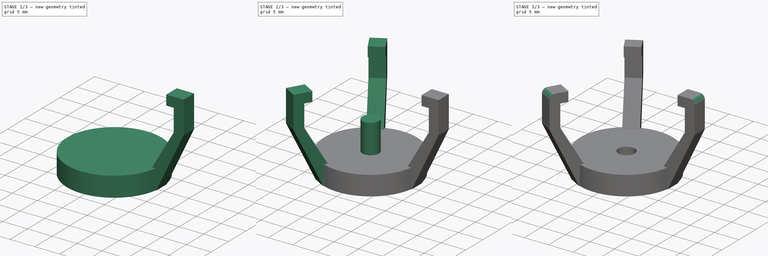
[diagram: build sequence overview — one tinted view per stage of 3, left to right]
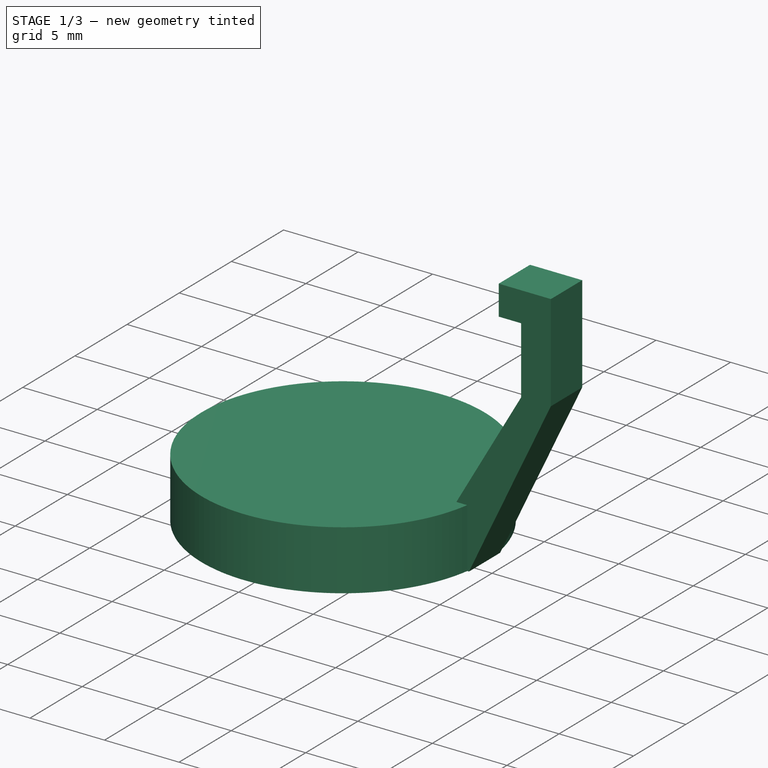
[diagram: stage 1 of 3 — iso view after this stage's code; geometry added in this stage tinted green]
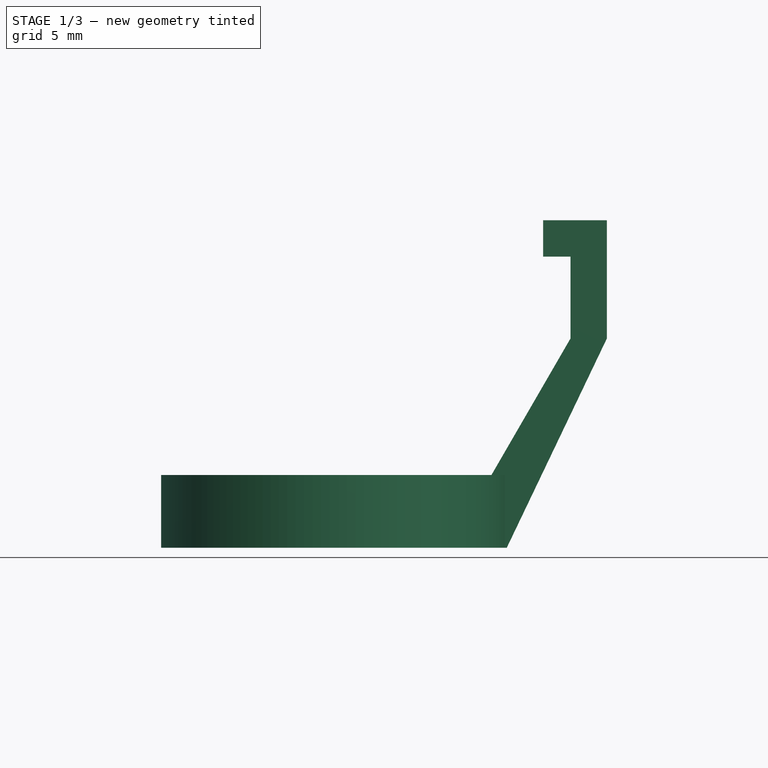
[diagram: stage 1 of 3 — front view after this stage's code; geometry added in this stage tinted green]
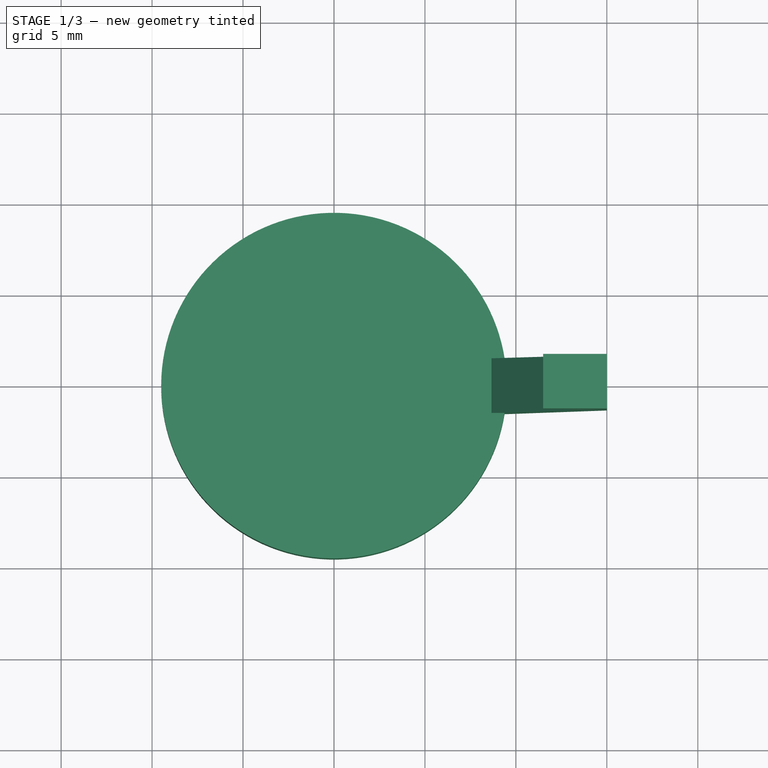
[diagram: stage 1 of 3 — top view after this stage's code; geometry added in this stage tinted green]
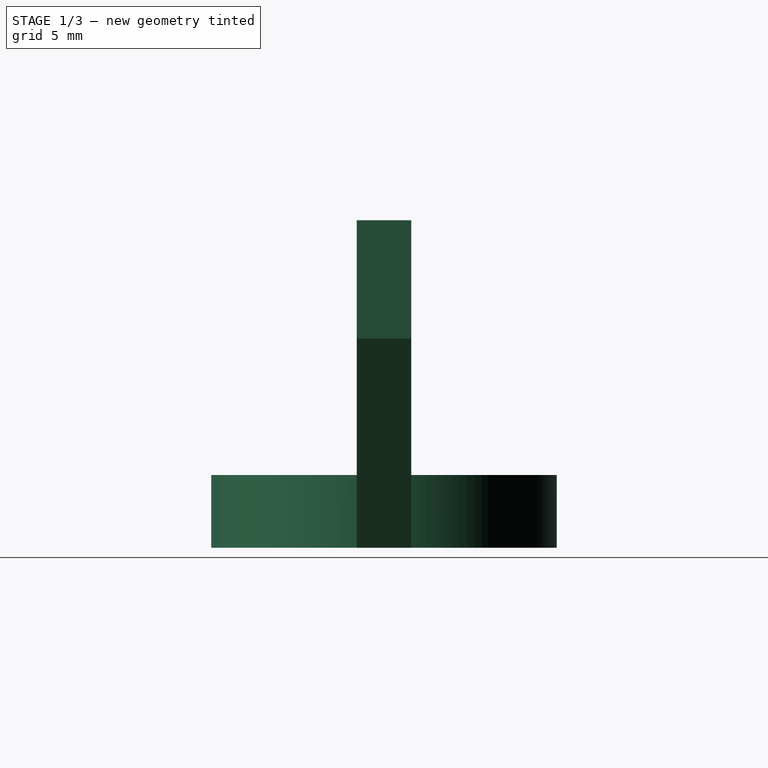
[diagram: stage 1 of 3 — right view after this stage's code; geometry added in this stage tinted green]
FCSTD DOCUMENT  (FreeCAD 1.0R39285 (Git))
Label: BeeperHolder
License: All rights reserved
LicenseURL: https://en.wikipedia.org/wiki/All_rights_reserved
objects: Part::Cylinder×2, Sketcher::SketchObject×1, PartDesign::Pad×1, PartDesign::PolarPattern×1, PartDesign::Body×1, Part::Fuse×1, Part::Cut×1, Part::Fillet×1
note: 13 computed .brp shape members not serialized (recipe doc carries the construction recipe); baked Part::Feature solids carry a one-line shape summary decoded from their .brp

FEATURE [Sketcher::SketchObject] Sketch  label="ArmSketch"
  ArcFitTolerance = 1e-06
  AttachmentSupport = -> [XZ_Plane]
  FullyConstrained = true
  MakeInternals = false
  MapMode = 5
  Placement = pos=(0,0,0) rot=(1,0,0;1.5708rad)
  sketch-geometry (18):
    g0: LineSegment [constr] StartX=0 StartY=15.5 StartZ=0 EndX=0 EndY=11.5 EndZ=0
    g1: LineSegment [constr] StartX=0 StartY=11.5 StartZ=0 EndX=13 EndY=11.5 EndZ=0
    g2: LineSegment [constr] StartX=13 StartY=11.5 StartZ=0 EndX=13 EndY=15.5 EndZ=0
    g3: LineSegment [constr] StartX=13 StartY=15.5 StartZ=0 EndX=0 EndY=15.5 EndZ=0
    g4: LineSegment [constr] StartX=7.5 StartY=11.5 StartZ=0 EndX=0 EndY=11.5 EndZ=0
    g5: LineSegment [constr] StartX=0 StartY=11.5 StartZ=0 EndX=0 EndY=8.5 EndZ=0
    g6: LineSegment [constr] StartX=0 StartY=8.5 StartZ=0 EndX=7.5 EndY=8.5 EndZ=0
    g7: LineSegment [constr] StartX=7.5 StartY=8.5 StartZ=0 EndX=7.5 EndY=11.5 EndZ=0
    g8: LineSegment StartX=0 StartY=0 StartZ=0 EndX=0 EndY=2 EndZ=0
    g9: LineSegment StartX=0 StartY=2 StartZ=0 EndX=7.5 EndY=2 EndZ=0
    g10: LineSegment StartX=7.5 StartY=2 StartZ=0 EndX=13 EndY=11.5 EndZ=0
    g11: LineSegment StartX=0 StartY=0 StartZ=0 EndX=9.5 EndY=0 EndZ=0
    g12: LineSegment StartX=9.5 StartY=0 StartZ=0 EndX=15 EndY=11.5 EndZ=0
    g13: LineSegment StartX=13 StartY=11.5 StartZ=0 EndX=13 EndY=16 EndZ=0
    g14: LineSegment StartX=13 StartY=16 StartZ=0 EndX=11.5 EndY=16 EndZ=0
    g15: LineSegment StartX=11.5 StartY=16 StartZ=0 EndX=11.5 EndY=18 EndZ=0
    g16: LineSegment StartX=11.5 StartY=18 StartZ=0 EndX=15 EndY=18 EndZ=0
    g17: LineSegment StartX=15 StartY=18 StartZ=0 EndX=15 EndY=11.5 EndZ=0
  constraints (51):
    c: Coincident(g0,g1)
    c: Coincident(g1,g2)
    c: Coincident(g2,g3)
    c: Coincident(g3,g0)
    c: Vertical(g0)
    c: Vertical(g2)
    c: Horizontal(g1)
    c: Horizontal(g3)
    c: PointOnObject(g0,g-2)
    c: DistanceX(g3,g3) = 13
    c: DistanceY(g0,g0) = 4
    c: Coincident(g4,g5)
    c: Coincident(g5,g6)
    c: Coincident(g6,g7)
    c: Coincident(g7,g4)
    c: Horizontal(g4)
    c: Horizontal(g6)
    c: Vertical(g5)
    c: Vertical(g7)
    c: DistanceX(g6,g6) = 7.5
    c: DistanceY(g5,g5) = 3
    c: Coincident(g-1,g8)
    c: PointOnObject(g8,g-2)
    c: Coincident(g8,g9)
    c: Horizontal(g9)
    c: Coincident(g9,g10)
    c: Coincident(g0,g4)
    c: Coincident(g8,g11)
    c: PointOnObject(g11,g-1)
    c: Coincident(g11,g12)
    c: DistanceY(g8,g8) = 2
    c: DistanceY(g8,g5) = 6.5
    c: Coincident(g10,g13)
    c: Vertical(g13)
    c: Coincident(g13,g14)
    c: Horizontal(g14)
    c: Coincident(g14,g15)
    c: Vertical(g15)
    c: Coincident(g15,g16)
    c: Horizontal(g16)
    c: Coincident(g16,g17)
    c: Coincident(g17,g12)
    c: Vertical(g6,g9)
    c: DistanceX(g9,g11) = 2
    c: Coincident(g1,g10)
    c: Horizontal(g1,g12)
    c: DistanceX(g1,g12) = 2
    c: Vertical(g17)
    c: DistanceY(g15,g15) = 2
    c: DistanceX(g14,g14) = 1.5
    c: DistanceY(g2,g13) = 0.5
FEATURE [PartDesign::Pad] Pad  label="ArmPad"
  Direction = (0,-1,2e-16)
  Length = 3
  Length2 = 10
  Midplane = true
  Placement = pos=(0,0,0) rot=(1,0,0;1.5708rad)
  Profile = -> Sketch
  ReferenceAxis = -> Sketch [N_Axis]
  Refine = true
  Suppressed = false
  Type = 0
FEATURE [PartDesign::Body] Body
  AllowCompound = false
  Group = -> [Sketch,Pad,PolarPattern]
  Origin = -> Origin
  Tip = -> PolarPattern
FEATURE [Part::Cylinder] Cylinder  label="BaseCylinder"
  Angle = 360
  AttacherType = Attacher::AttachEngine3D
  FirstAngle = 0
  Height = 4
  Radius = 9.5
  SecondAngle = 0
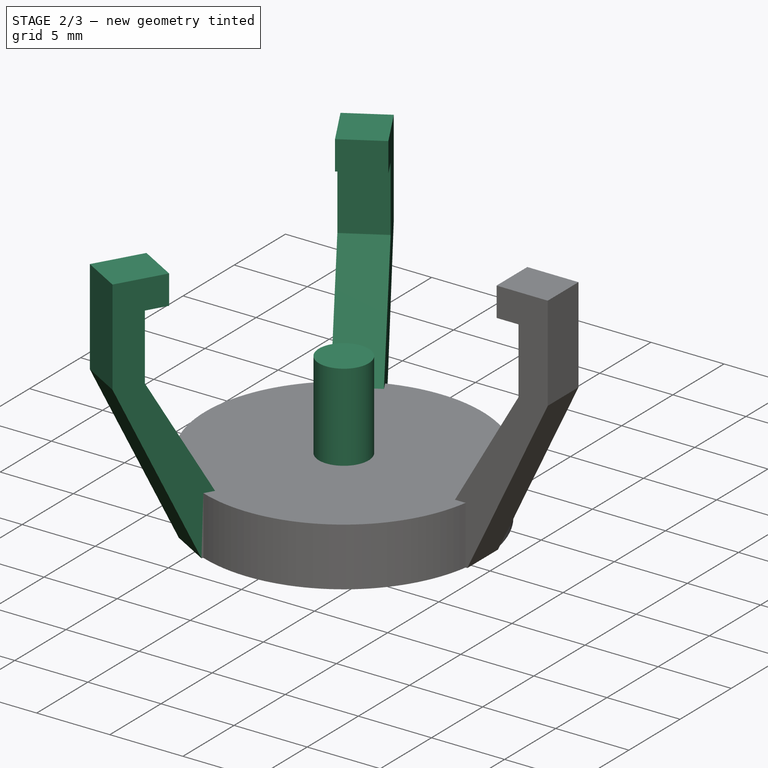
[diagram: stage 2 of 3 — iso view after this stage's code; geometry added in this stage tinted green]
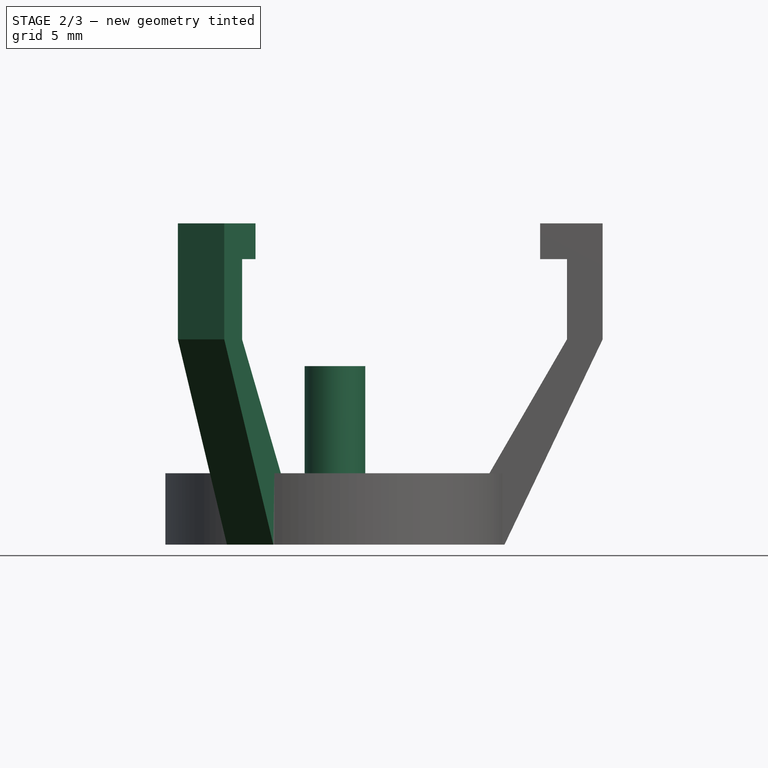
[diagram: stage 2 of 3 — front view after this stage's code; geometry added in this stage tinted green]
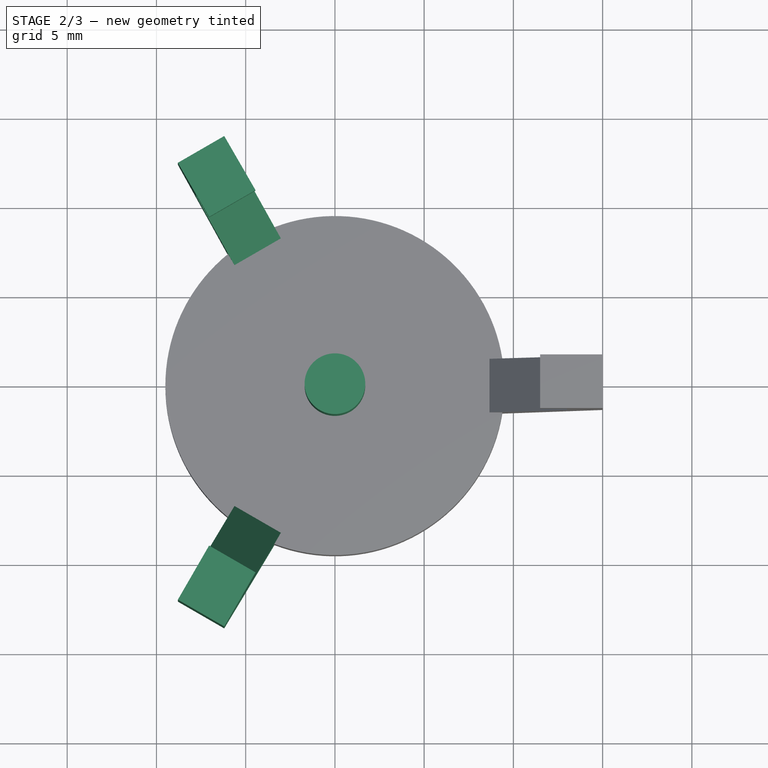
[diagram: stage 2 of 3 — top view after this stage's code; geometry added in this stage tinted green]
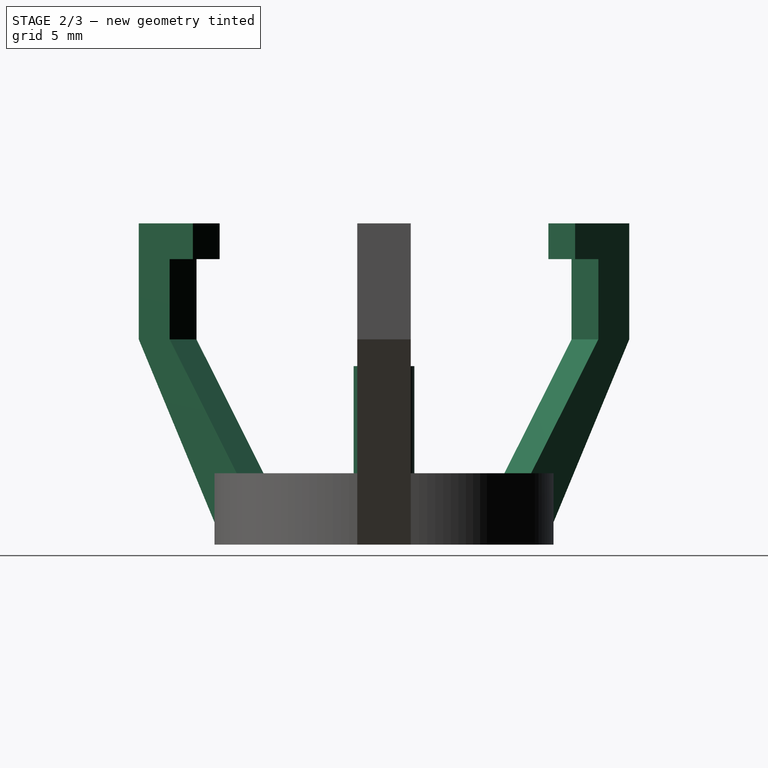
[diagram: stage 2 of 3 — right view after this stage's code; geometry added in this stage tinted green]
FEATURE [PartDesign::PolarPattern] PolarPattern  label="Arm3xPolar"
  Angle = 360
  Axis = -> Z_Axis
  BaseFeature = -> Pad
  Mode = 0
  Occurrences = 3
  Offset = 120
  Originals = -> [Pad]
  Placement = pos=(0,0,0) rot=(1,0,0;1.5708rad)
  Refine = true
  Suppressed = false
  TransformMode = 0
FEATURE [Part::Cylinder] Cylinder001  label="BoltCylinder"
  Angle = 360
  AttacherType = Attacher::AttachEngine3D
  FirstAngle = 0
  Height = 10
  Radius = 1.7
  SecondAngle = 0
FEATURE [Part::Fuse] Fusion
  Base = -> Body
  Refine = true
  Tool = -> Cylinder
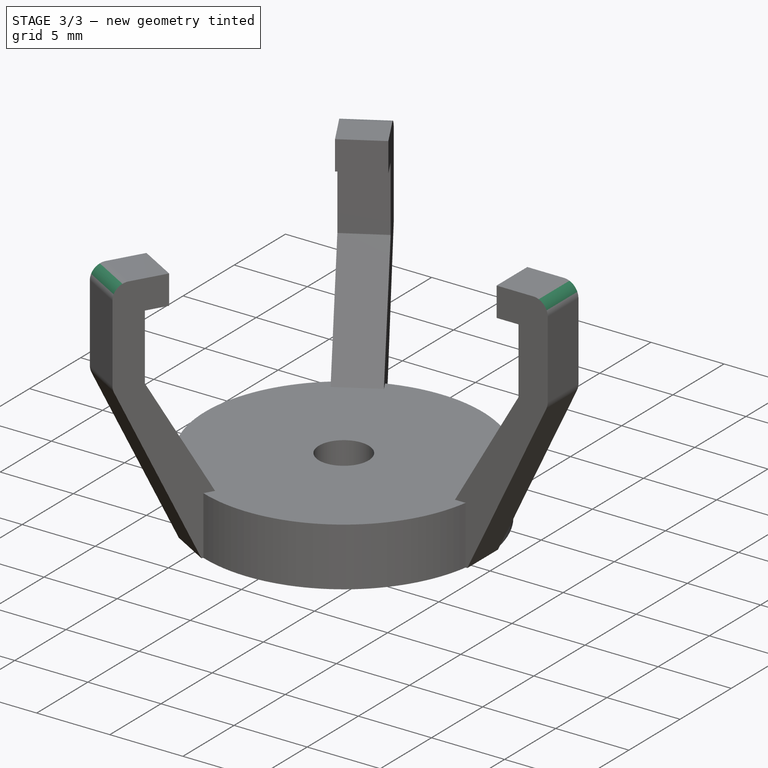
[diagram: stage 3 of 3 — iso view after this stage's code; geometry added in this stage tinted green]
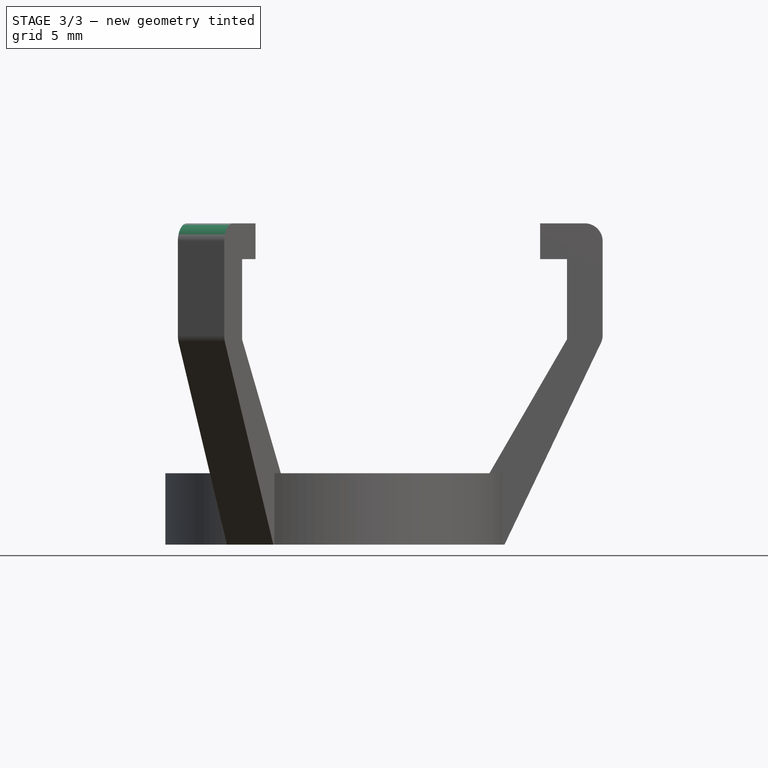
[diagram: stage 3 of 3 — front view after this stage's code; geometry added in this stage tinted green]
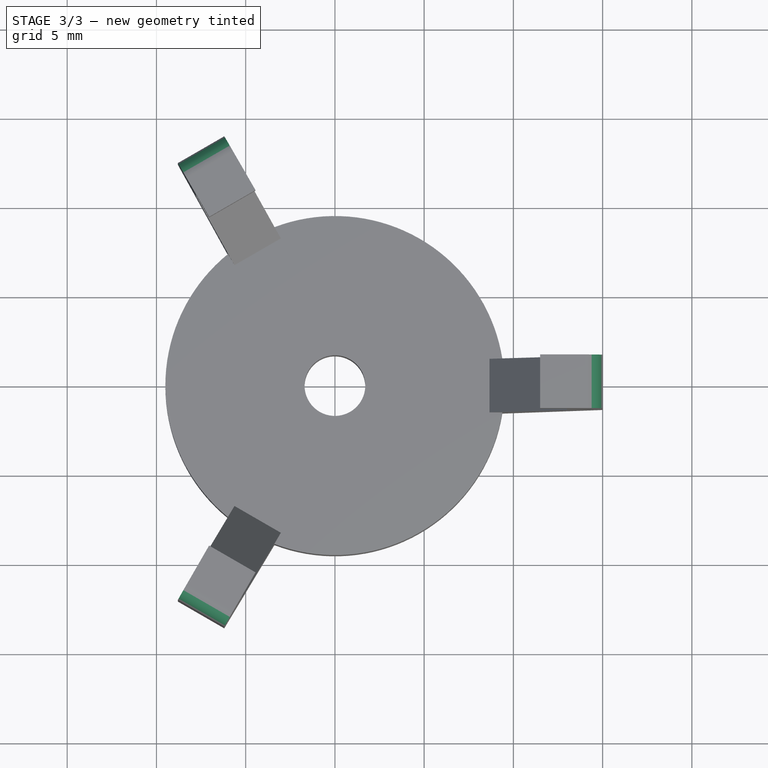
[diagram: stage 3 of 3 — top view after this stage's code; geometry added in this stage tinted green]
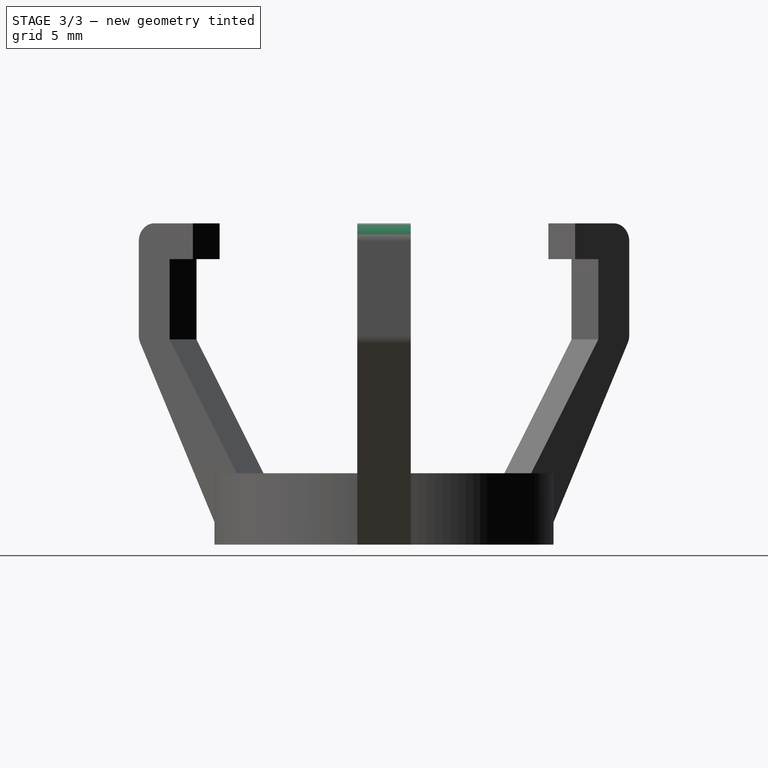
[diagram: stage 3 of 3 — right view after this stage's code; geometry added in this stage tinted green]
FEATURE [Part::Cut] Cut
  Base = -> Fusion
  Refine = true
  Tool = -> Cylinder001
FEATURE [Part::Fillet] Fillet
  Base = -> Cut
  EdgeLinks = -> Cut [Edge43,Edge45,Edge56,Edge82,Edge84,Edge90]
  Edges = 6 edges r=1: [Edge43,Edge45,Edge56,Edge82,Edge84,Edge90]
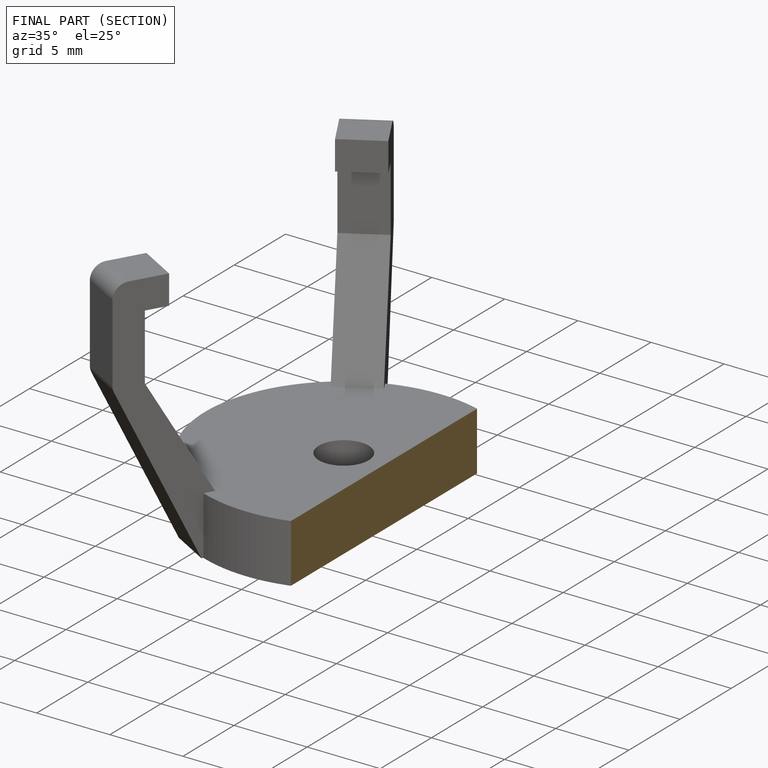
[diagram: finished part — half-section view (interior)]
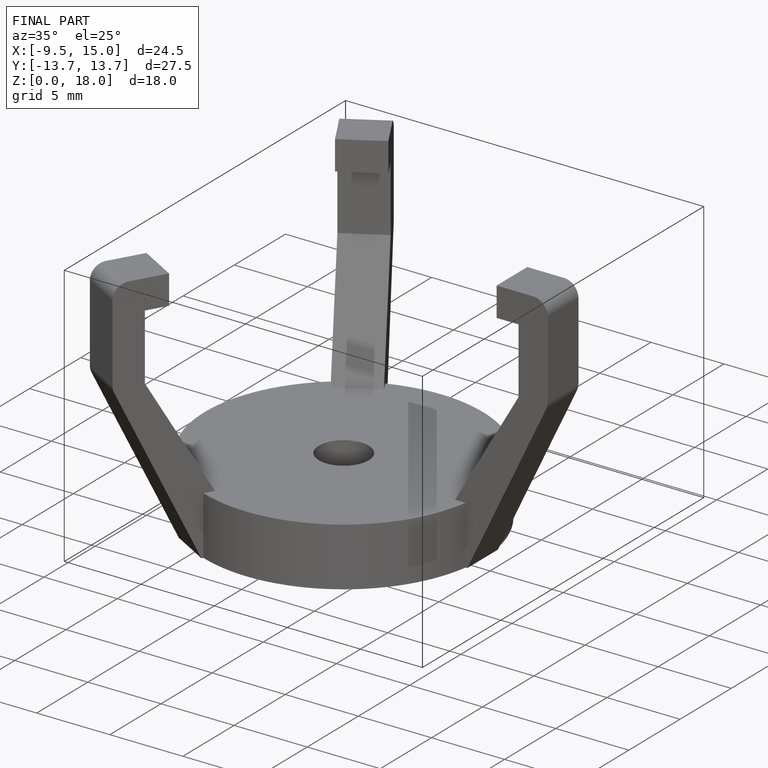
[diagram: finished part — iso view with bounding-box wireframe]
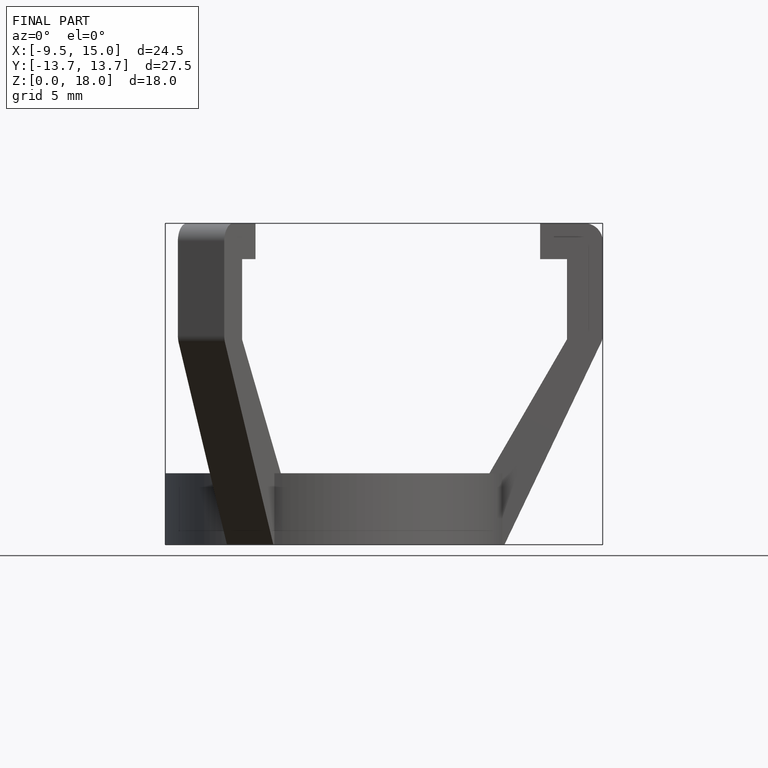
[diagram: finished part — front view with bounding-box wireframe]
